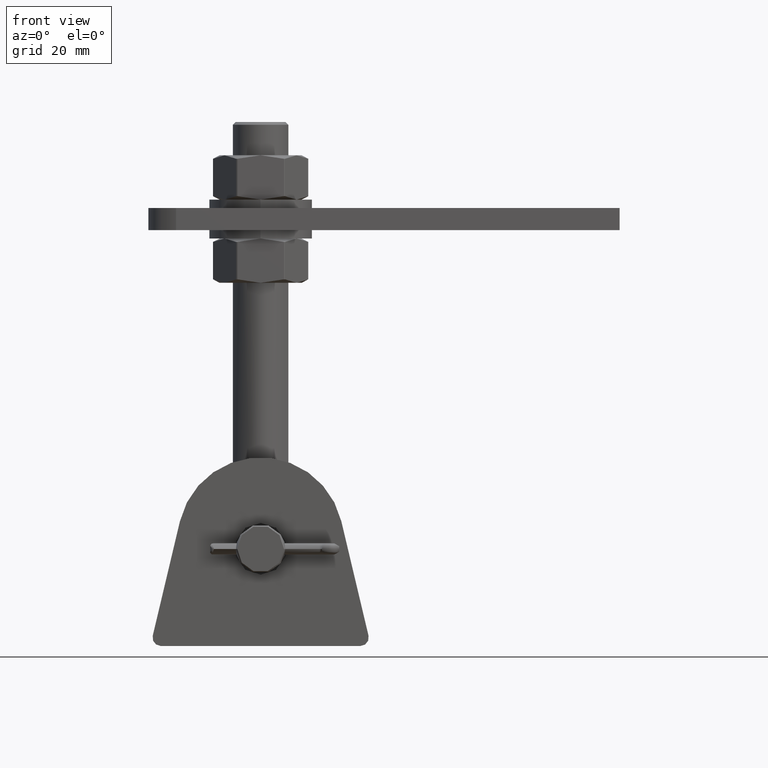
[diagram: clean part render]
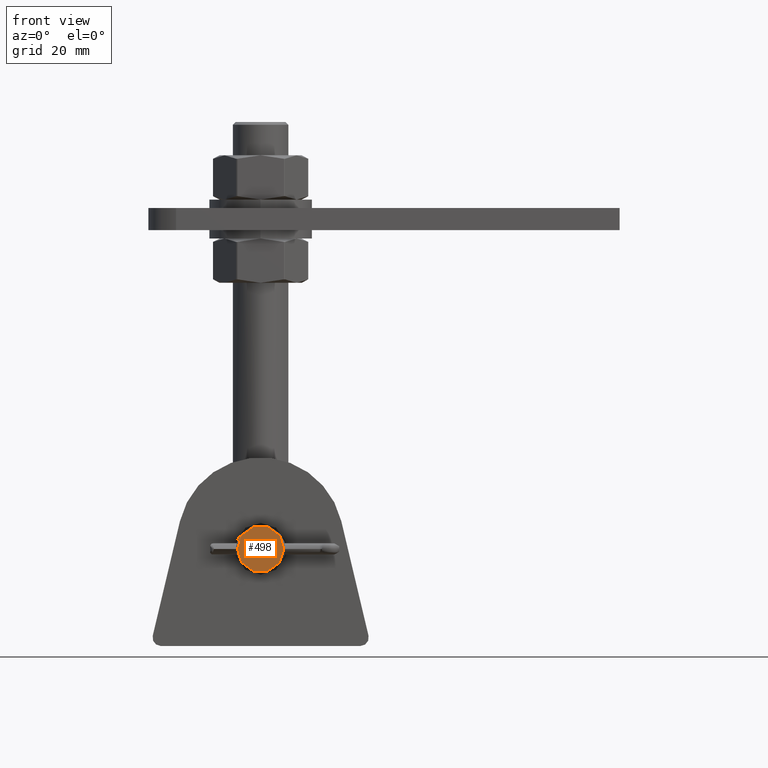
[diagram: same view with one face highlighted and labeled with its STEP entity id]
A machine part, front view. The second image highlights one B-rep face of the part: STEP entity #498.
In plain terms, the highlighted planar face has unit normal (-0, 1, 0).
Its self-contained STEP definition (entity closure, byte-faithful):
#498 = ADVANCED_FACE ( 'NONE', ( #12763 ), #16893, .F. ) ;
#968 = DIRECTION ( 'NONE',  ( -1.736439491328340261E-17, 1.000000000000000000, -4.379057701015053347E-47 ) ) ;
#1826 = EDGE_CURVE ( 'NONE', #8780, #3424, #11779, .T. ) ;
#2940 = CARTESIAN_POINT ( 'NONE',  ( -1.163414459189986471E-15, 67.00000000000000000, -1.368455531567204171E-45 ) ) ;
#3146 = DIRECTION ( 'NONE',  ( -1.736439491328340261E-17, 1.000000000000000000, -4.379057701015053347E-47 ) ) ;
#3424 = VERTEX_POINT ( 'NONE', #11725 ) ;
#4395 = DIRECTION ( 'NONE',  ( 1.000000000000000000, 0.000000000000000000, 0.000000000000000000 ) ) ;
#4776 = AXIS2_PLACEMENT_3D ( 'NONE', #2940, #3146, #4395 ) ;
#5089 = EDGE_CURVE ( 'NONE', #3424, #8780, #11758, .T. ) ;
#5217 = ORIENTED_EDGE ( 'NONE', *, *, #1826, .T. ) ;
#7216 = DIRECTION ( 'NONE',  ( 1.736439491328335331E-17, -1.000000000000000000, 4.379057701015053347E-47 ) ) ;
#7510 = AXIS2_PLACEMENT_3D ( 'NONE', #15295, #7216, #14113 ) ;
#7765 = CARTESIAN_POINT ( 'NONE',  ( -1.163414459189986471E-15, 67.00000000000000000, -1.368455531567204171E-45 ) ) ;
#8780 = VERTEX_POINT ( 'NONE', #11133 ) ;
#9734 = ORIENTED_EDGE ( 'NONE', *, *, #5089, .T. ) ;
#11133 = CARTESIAN_POINT ( 'NONE',  ( -8.400000000000019895, 67.00000000000000000, 1.059319481262461556E-15 ) ) ;
#11250 = AXIS2_PLACEMENT_3D ( 'NONE', #7765, #968, #14659 ) ;
#11725 = CARTESIAN_POINT ( 'NONE',  ( 8.400000000000016342, 67.00000000000000000, -1.368455531567204171E-45 ) ) ;
#11758 = CIRCLE ( 'NONE', #4776, 8.400000000000018119 ) ;
#11779 = CIRCLE ( 'NONE', #11250, 8.400000000000018119 ) ;
#12763 = FACE_OUTER_BOUND ( 'NONE', #14497, .T. ) ;
#14113 = DIRECTION ( 'NONE',  ( 1.000000000000000000, 1.736439491328335331E-17, 0.000000000000000000 ) ) ;
#14497 = EDGE_LOOP ( 'NONE', ( #9734, #5217 ) ) ;
#14659 = DIRECTION ( 'NONE',  ( 1.000000000000000000, 0.000000000000000000, 0.000000000000000000 ) ) ;
#15295 = CARTESIAN_POINT ( 'NONE',  ( 8.899999999999998579, 67.00000000000000000, -5.631043375293510749E-32 ) ) ;
#16893 = PLANE ( 'NONE',  #7510 ) ;